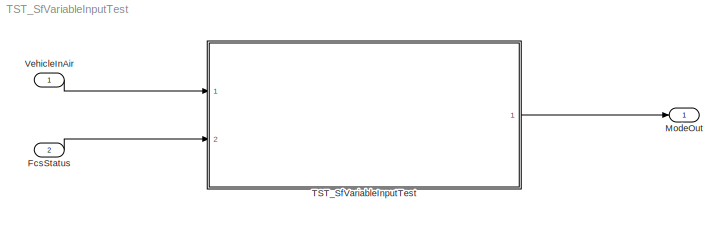
MODEL TST_SfVariableInputTest
KIND model
BLOCK [Inport] FcsStatus
  IconDisplay = Port number
  OutDataTypeStr = Bus: FCS_FlightControlSystem_Status
  Port = 2
  SID = 168
BLOCK [Outport] ModeOut
  IconDisplay = Port number
  OutDataTypeStr = int32
  PortDimensions = 1
  SID = 169
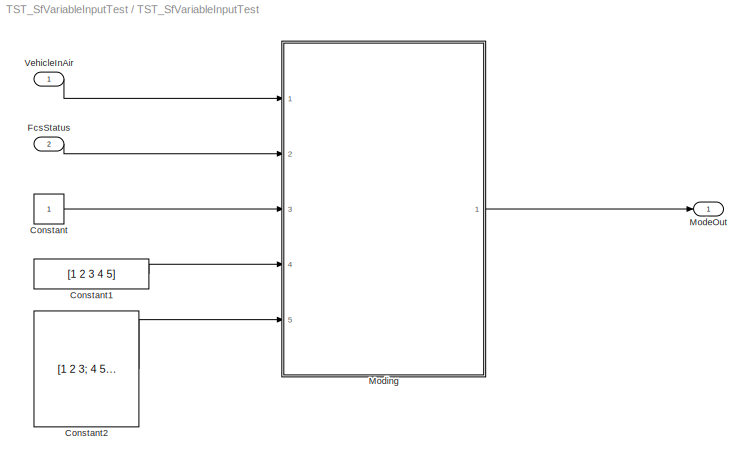
BLOCK [SubSystem] TST_SfVariableInputTest
  Ports = [2, 1]
  RequestExecContextInheritance = off
  SID = 160
  TreatAsAtomicUnit = on
BLOCK [Constant] TST_SfVariableInputTest/Constant
  SID = 176
BLOCK [Constant] TST_SfVariableInputTest/Constant1
  SID = 177
  Value = [1 2 3 4 5]
BLOCK [Constant] TST_SfVariableInputTest/Constant2
  SID = 178
  Value = [1 2 3; 4 5 6]
  VectorParams1D = off
BLOCK [Inport] TST_SfVariableInputTest/FcsStatus
  IconDisplay = Port number
  OutDataTypeStr = Bus: FCS_FlightControlSystem_Status
  Port = 2
  SID = 164
BLOCK [Outport] TST_SfVariableInputTest/ModeOut
  IconDisplay = Port number
  OutDataTypeStr = int32
  PortDimensions = 1
  SID = 166
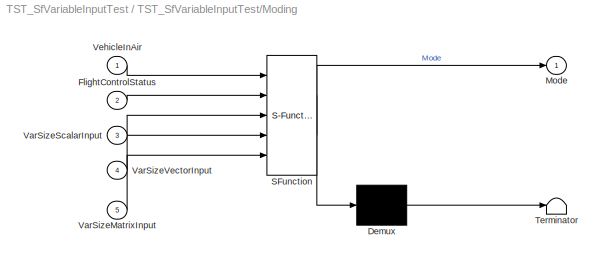
BLOCK [SubSystem] TST_SfVariableInputTest/Moding
  ErrorFcn = Stateflow.Translate.translate
  PermitHierarchicalResolution = ExplicitOnly
  Ports = [5, 1]
  RequestExecContextInheritance = off
  SFBlockType = Chart
  SID = 165
  TreatAsAtomicUnit = on
BLOCK [Demux] TST_SfVariableInputTest/Moding/ Demux 
  Outputs = 1
  Ports = [1, 1]
  SID = 165::175
BLOCK [S-Function] TST_SfVariableInputTest/Moding/ SFunction 
  EnableBusSupport = off
  FunctionName = sf_sfun
  PortCounts = [5 2]
  Ports = [5, 2]
  SFcnIsStateOwnerBlock = off
  SFunctionDeploymentMode = off
  SID = 165::174
  Tag = Stateflow S-Function 1
BLOCK [Terminator] TST_SfVariableInputTest/Moding/ Terminator 
  SID = 165::176
BLOCK [Inport] TST_SfVariableInputTest/Moding/FlightControlStatus
  IconDisplay = Port number
  Port = 2
  SID = 165::145
BLOCK [Outport] TST_SfVariableInputTest/Moding/Mode
  IconDisplay = Port number
  SID = 165::150
BLOCK [Inport] TST_SfVariableInputTest/Moding/VarSizeMatrixInput
  IconDisplay = Port number
  Port = 5
  SID = 165::155
BLOCK [Inport] TST_SfVariableInputTest/Moding/VarSizeScalarInput
  IconDisplay = Port number
  Port = 3
  SID = 165::153
BLOCK [Inport] TST_SfVariableInputTest/Moding/VarSizeVectorInput
  IconDisplay = Port number
  Port = 4
  SID = 165::154
BLOCK [Inport] TST_SfVariableInputTest/Moding/VehicleInAir
  IconDisplay = Port number
  SID = 165::144
BLOCK [Inport] TST_SfVariableInputTest/VehicleInAir
  IconDisplay = Port number
  OutDataTypeStr = boolean
  PortDimensions = 1
  SID = 163
BLOCK [Inport] VehicleInAir
  IconDisplay = Port number
  OutDataTypeStr = boolean
  PortDimensions = 1
  SID = 167
LINE FcsStatus:1 -> TST_SfVariableInputTest:2
LINE TST_SfVariableInputTest/Constant1:1 -> TST_SfVariableInputTest/Moding:4
LINE TST_SfVariableInputTest/Constant2:1 -> TST_SfVariableInputTest/Moding:5
LINE TST_SfVariableInputTest/Constant:1 -> TST_SfVariableInputTest/Moding:3
LINE TST_SfVariableInputTest/FcsStatus:1 -> TST_SfVariableInputTest/Moding:2
LINE TST_SfVariableInputTest/Moding/ Demux :1 -> TST_SfVariableInputTest/Moding/ Terminator :1
LINE TST_SfVariableInputTest/Moding/ SFunction :1 -> TST_SfVariableInputTest/Moding/ Demux :1
LINE TST_SfVariableInputTest/Moding/ SFunction :2 -> TST_SfVariableInputTest/Moding/Mode:1
LINE TST_SfVariableInputTest/Moding/FlightControlStatus:1 -> TST_SfVariableInputTest/Moding/ SFunction :2
LINE TST_SfVariableInputTest/Moding/VarSizeMatrixInput:1 -> TST_SfVariableInputTest/Moding/ SFunction :5
LINE TST_SfVariableInputTest/Moding/VarSizeScalarInput:1 -> TST_SfVariableInputTest/Moding/ SFunction :3
LINE TST_SfVariableInputTest/Moding/VarSizeVectorInput:1 -> TST_SfVariableInputTest/Moding/ SFunction :4
LINE TST_SfVariableInputTest/Moding/VehicleInAir:1 -> TST_SfVariableInputTest/Moding/ SFunction :1
LINE TST_SfVariableInputTest/Moding:1 -> TST_SfVariableInputTest/ModeOut:1
LINE TST_SfVariableInputTest/VehicleInAir:1 -> TST_SfVariableInputTest/Moding:1
LINE TST_SfVariableInputTest:1 -> ModeOut:1
LINE VehicleInAir:1 -> TST_SfVariableInputTest:1
CHART TST_SfVariableInputTest/Moding states=3 transitions=3
  STATE_LABEL 'TopStateA\\nduring:\\nMode = int32(111);'
  STATE_LABEL 'Launch\\nentry:\\nMode = int32(VarSizeVectorInput[2]);'
  STATE_LABEL 'Off\\nentry:\\nMode = int32(1);'
